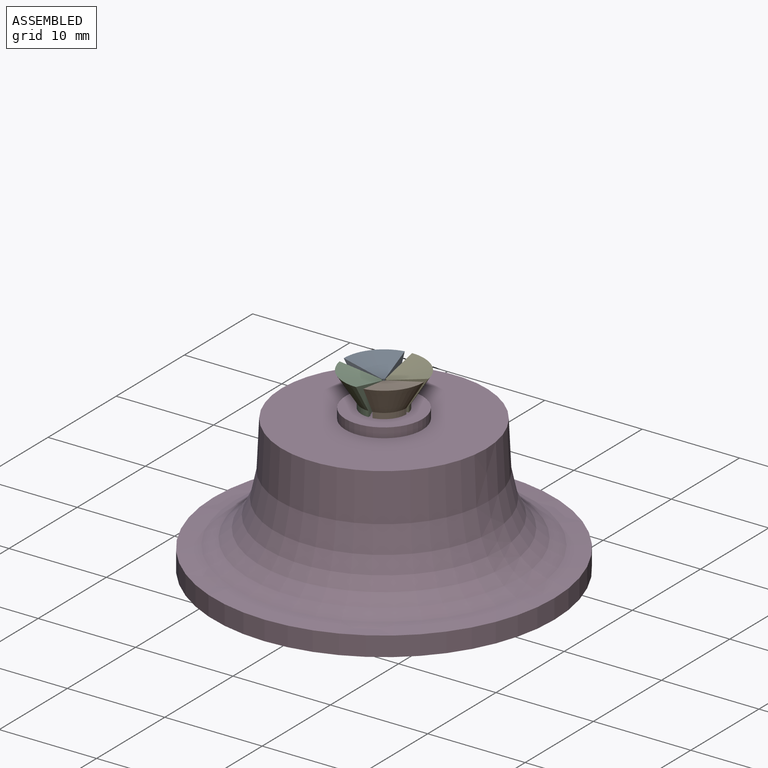
[diagram: assembled view]
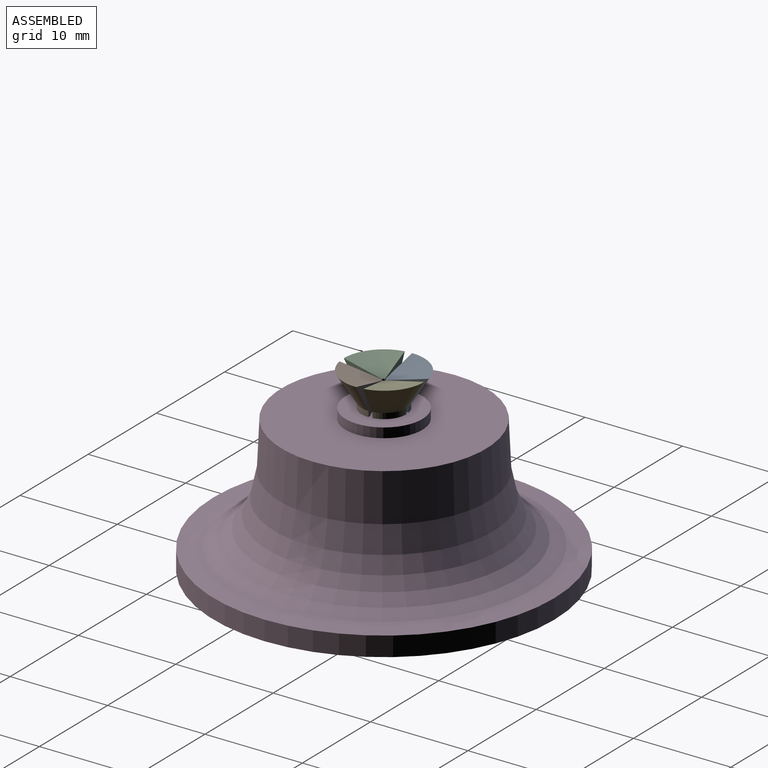
[diagram: assembled view, second angle]
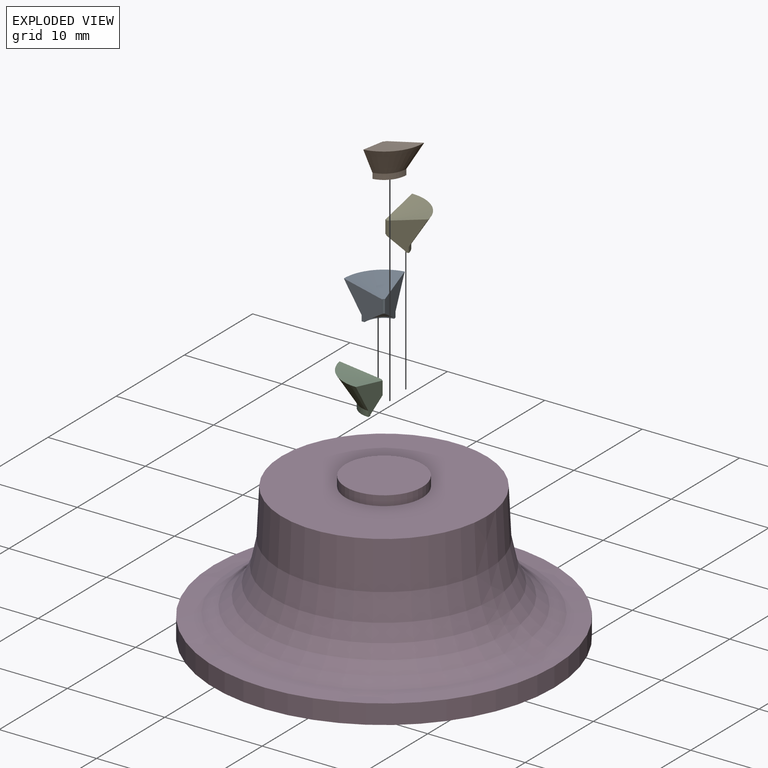
[diagram: exploded view]
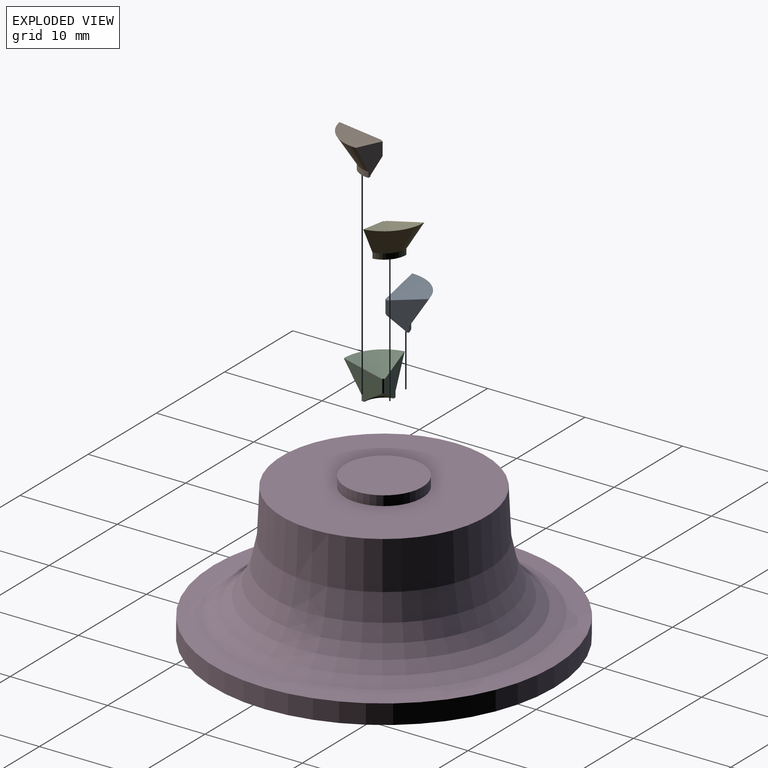
[diagram: exploded view, second angle]
ASSEMBLY  parts=5 mates=4
PART A: 9 faces, bbox 4.1x4.1x3.5 mm
  f0: cylinder r=0.2mm len=1.36mm, axis (0,0,1), area 0.4mm2, adj f1,f6,f7,f8
  f1: cone r=0.2mm half-angle=57.9deg, axis (0,0,-1), area 3.3mm2, adj f0,f2,f7,f8
  f2: cylinder r=2mm len=1.97mm, axis (0,0,1), area 0.3mm2, adj f1,f3,f7,f8
  f3: plane 2.27x1.95mm, normal (0,0,-1), area 0.9mm2, adj f2,f4,f7,f8
  f4: cylinder r=2.3mm len=2.27mm, axis (0,0,1), area 1.9mm2, adj f3,f5,f7,f8
  f5: cone r=2.3mm half-angle=32.1deg, axis (0,0,1), area 15.4mm2, adj f4,f6,f7,f8
  f6: cone r=4.13mm half-angle=77.1deg, axis (0,0,1), area 12.2mm2, adj f0,f5,f7,f8
  f7: plane 3.87x3.49mm, normal (-0.98,-0.17,0), area 7mm2, adj f0,f1,f2,f3,f4,f5,f6
  f8: plane 3.93x3.49mm, normal (0,1,0), area 7mm2, adj f0,f1,f2,f3,f4,f5,f6
PART B: same geometry as A
PART C: same geometry as A
PART D: 9 faces, bbox 35x35x15 mm
  f0: plane 21x21mm, normal (0,0,1), area 297.3mm2, adj f1,f8
  f1: cylinder r=3.95mm len=7.9mm, axis (0,0,1), area 24.8mm2, adj f0,f2
  f2: plane 7.9x7.9mm, normal (0,0,1), area 49mm2, adj f1
  f3: plane 4x4mm, normal (0,0,-1), area 12.6mm2, adj f4
  f4: cylinder r=2mm len=12.05mm, axis (0,0,1), area 151.4mm2, adj f3,f5
  f5: sphere r=40.06mm, area 490.9mm2, adj f4,f6
  f6: plane 35x35mm, normal (0,0,-1), area 471.2mm2, adj f5,f7
  f7: cylinder r=17.5mm len=35mm, axis (0,0,1), area 219.9mm2, adj f6,f8
  f8: revolved ~35x35mm, area 1231.1mm2, adj f0,f7
PART E: same geometry as A
PLACE A rot(axis=(0,0,1),180deg) t=(-3.06,2.24,15.71)mm
PLACE B t=(-3.06,2.24,15.71)mm
PLACE C rot(axis=(0,0,-1),90deg) t=(-3.06,2.24,15.71)mm
PLACE D t=(-3.06,2.24,0.71)mm
PLACE E rot(axis=(0,0,1),90deg) t=(-3.06,2.24,15.71)mm
MATE fastened B.f0 <-> D.f1  axis (0,0,1) through (-3.06,2.24,15.71)mm
MATE fastened A.f0 <-> D.f1  axis (0,0,1) through (-3.06,2.24,15.71)mm
MATE fastened C.f0 <-> D.f1  axis (0,0,1) through (-3.06,2.24,15.71)mm
MATE fastened E.f0 <-> D.f1  axis (0,0,1) through (-3.06,2.24,15.71)mm
